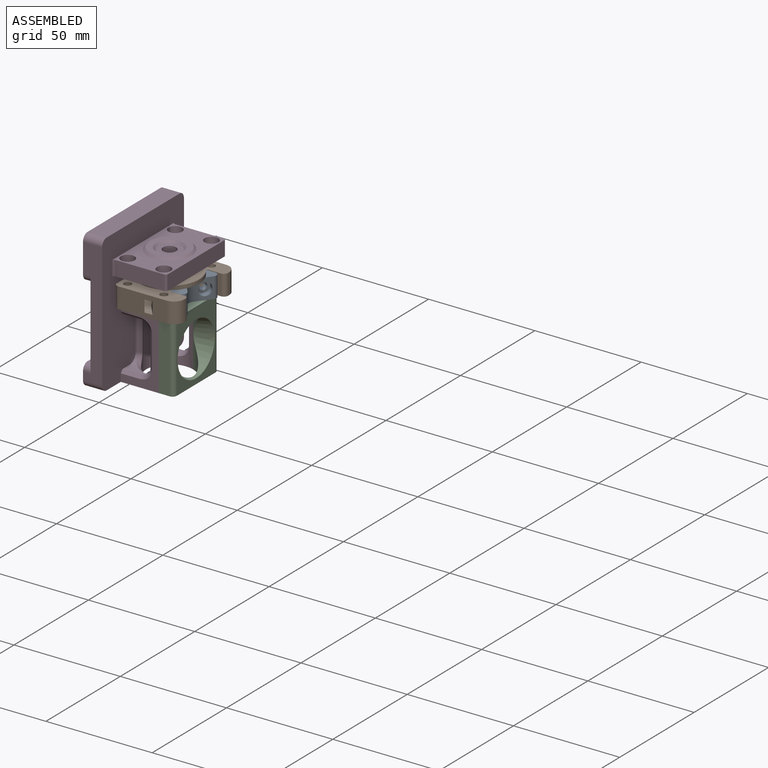
[diagram: assembled view]
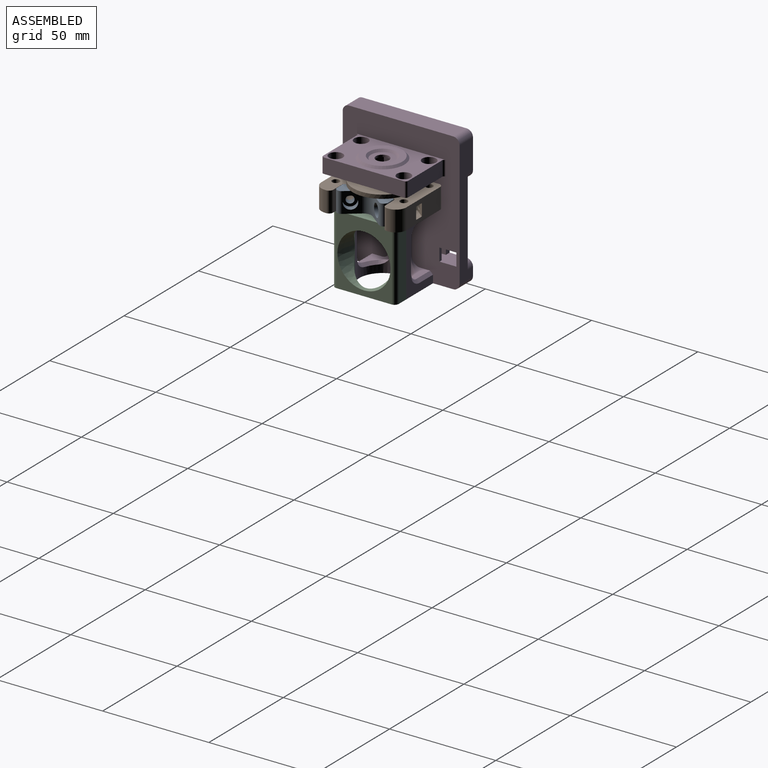
[diagram: assembled view, second angle]
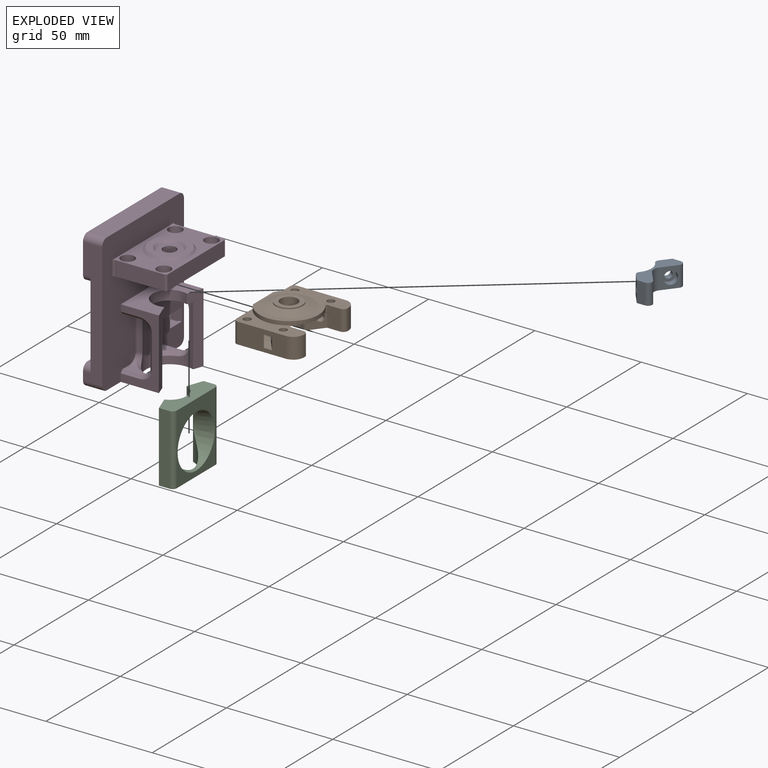
[diagram: exploded view]
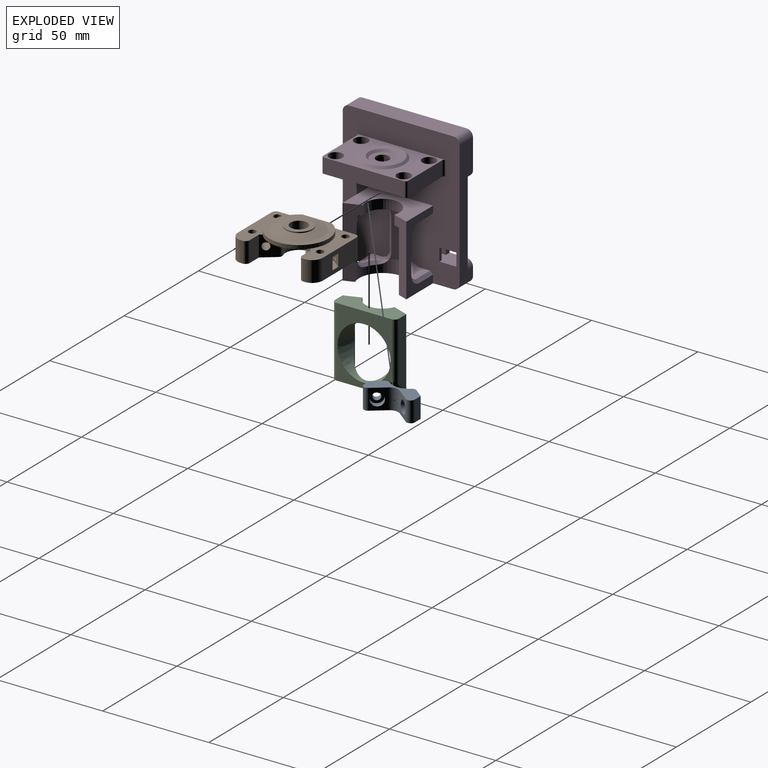
[diagram: exploded view, second angle]
ASSEMBLY  parts=4 mates=3
PART A: 24 faces, bbox 11x24x9.7 mm
  f0: cylinder r=1.75mm len=4.79mm, axis (0.78,0.62,0), area 36.3mm2, adj f7,f10
  f1: plane 24x9.73mm, normal (0,0,1), area 128mm2, adj f3,f6,f7,f8,f9,f12,f14,f16
  f2: plane 24x11mm, normal (0,0,-1), area 153.4mm2, adj f5,f6,f7,f8,f9,f13,f14,f16
  f3: cylinder r=8mm len=10.32mm, axis (0,0,-1), area 44.9mm2, adj f1,f4,f12,f21
  f4: plane 15.38x3.63mm, normal (0,0,1), area 25.4mm2, adj f3,f5,f7,f12,f13,f17,f21,f22
  f5: cylinder r=6mm len=7.26mm, axis (0,0,-1), area 44.4mm2, adj f2,f4,f13,f22
  f6: plane 9.7x3.9mm, normal (0,-1,0), area 37.8mm2, adj f1,f2,f7,f14
  f7: plane 9.7x5.92mm, normal (-0.78,-0.62,0), area 55.3mm2, adj f0,f1,f2,f4,f6,f12,f13
  f8: cylinder r=4mm len=9.7mm, axis (0,0,1), area 51.9mm2, adj f1,f2,f9,f18
  f9: plane 9.7x6.28mm, normal (0.78,0.62,0), area 49.4mm2, adj f1,f2,f8,f11,f14
  f10: plane 6x4.71mm, normal (0.78,0.62,0), area 18.7mm2, adj f0,f11
  f11: cylinder r=3mm len=6.57mm, axis (0.78,0.62,0), area 56.5mm2, adj f9,f10
  f12: cylinder r=2mm len=4mm, axis (0,0,-1), area 11mm2, adj f1,f3,f4,f7
  f13: cylinder r=2mm len=5.7mm, axis (0,0,-1), area 15mm2, adj f2,f4,f5,f7
  f14: cylinder r=2mm len=9.7mm, axis (0,0,-1), area 43.4mm2, adj f1,f2,f6,f9
  f15: cylinder r=1.75mm len=4.79mm, axis (0.78,-0.62,0), area 36.3mm2, adj f17,f19
  f16: plane 9.7x3.9mm, normal (0,1,0), area 37.8mm2, adj f1,f2,f17,f23
  f17: plane 9.7x5.92mm, normal (-0.78,0.62,0), area 55.3mm2, adj f1,f2,f4,f15,f16,f21,f22
  f18: plane 9.7x6.28mm, normal (0.78,-0.62,0), area 49.4mm2, adj f1,f2,f8,f20,f23
  f19: plane 6x4.71mm, normal (0.78,-0.62,0), area 18.7mm2, adj f15,f20
  f20: cylinder r=3mm len=6.57mm, axis (0.78,-0.62,0), area 56.5mm2, adj f18,f19
  f21: cylinder r=2mm len=4mm, axis (0,0,-1), area 11mm2, adj f1,f3,f4,f17
  f22: cylinder r=2mm len=5.7mm, axis (0,0,-1), area 15mm2, adj f2,f4,f5,f17
  f23: cylinder r=2mm len=9.7mm, axis (0,0,-1), area 43.4mm2, adj f1,f2,f16,f18
PART B: 82 faces, bbox 29.7x40x13.5 mm
  f0: plane 22.34x22.3mm, normal (0,0,-1), area 285.4mm2, adj f6,f12,f17,f19,f43,f54,f78
  f1: plane 22.7x9.7mm, normal (0,-1,0), area 198.4mm2, adj f2,f5,f11,f35,f36,f37,f40,f46
  f2: plane 40x29.7mm, normal (0,0,-1), area 654.8mm2, adj f1,f8,f9,f10,f11,f18,f19,f22
  f3: cylinder r=1.75mm len=7mm, axis (0,0,1), area 77mm2, adj f5,f28
  f4: cylinder r=1.75mm len=7mm, axis (0,0,1), area 77mm2, adj f5,f21
  f5: plane 29.7x13.13mm, normal (0,0,1), area 200.6mm2, adj f1,f3,f4,f9,f10,f11,f17,f18
  f6: cylinder r=8.3mm len=16.6mm, axis (0,0,-1), area 143.8mm2, adj f0,f7,f43,f78
  f7: plane 16.6x14.29mm, normal (0,0,1), area 64.3mm2, adj f6,f8,f19,f43,f44,f54,f78,f79
  f8: cylinder r=6.3mm len=12.6mm, axis (0,0,-1), area 133.2mm2, adj f2,f7,f44,f79
  f9: plane 36x11.5mm, normal (-1,0,0), area 373.9mm2, adj f2,f5,f16,f17,f46,f50,f81
  f10: plane 9.7x0.7mm, normal (1,0,0), area 6.8mm2, adj f2,f5,f11,f45
  f11: cylinder r=5mm len=9.7mm, axis (0,0,1), area 76.2mm2, adj f1,f2,f5,f10
  f12: cylinder r=4mm len=8mm, axis (0,0,1), area 95.5mm2, adj f0,f13
  f13: plane 12.5x12.5mm, normal (0,0,1), area 72.5mm2, adj f12,f14
  f14: cylinder r=6.25mm len=12.5mm, axis (0,0,1), area 19.6mm2, adj f13,f15
  f15: cone r=11.2mm half-angle=73.1deg, axis (0,0,-1), area 283.5mm2, adj f14,f16
  f16: plane 28x26.2mm, normal (0,0,1), area 205mm2, adj f9,f15,f17
  f17: cylinder r=14mm len=28mm, axis (0,0,1), area 132.5mm2, adj f0,f5,f9,f16,f50
  f18: plane 9.7x6.17mm, normal (0,1,0), area 59.9mm2, adj f2,f5,f19,f45
  f19: plane 9.7x5.86mm, normal (0.78,0.62,0), area 53.9mm2, adj f0,f2,f5,f7,f18,f20,f43,f44
  f20: cylinder r=1.75mm len=7.98mm, axis (0.78,0.62,0), area 81.4mm2, adj f19,f36
  f21: plane 6.58x5.7mm, normal (0,0,-1), area 18.5mm2, adj f4,f22,f23,f24,f25,f26,f27
  f22: plane 2.85x2.7mm, normal (-0.87,0.5,0), area 8.9mm2, adj f2,f21,f23,f27
  f23: plane 3.29x2.7mm, normal (0,1,0), area 8.9mm2, adj f2,f21,f22,f24
  f24: plane 2.85x2.7mm, normal (0.87,0.5,0), area 8.9mm2, adj f2,f21,f23,f25
  f25: plane 2.85x2.7mm, normal (0.87,-0.5,0), area 8.9mm2, adj f2,f21,f24,f26
  f26: plane 3.29x2.7mm, normal (0,-1,0), area 8.9mm2, adj f2,f21,f25,f27
  f27: plane 2.85x2.7mm, normal (-0.87,-0.5,0), area 8.9mm2, adj f2,f21,f22,f26
  f28: plane 6.58x5.7mm, normal (0,0,-1), area 18.5mm2, adj f3,f29,f30,f31,f32,f33,f34
  f29: plane 2.85x2.7mm, normal (-0.87,0.5,0), area 8.9mm2, adj f2,f28,f30,f34
  f30: plane 3.29x2.7mm, normal (0,1,0), area 8.9mm2, adj f2,f28,f29,f31
  f31: plane 2.85x2.7mm, normal (0.87,0.5,0), area 8.9mm2, adj f2,f28,f30,f32
  f32: plane 2.85x2.7mm, normal (0.87,-0.5,0), area 8.9mm2, adj f2,f28,f31,f33
  f33: plane 3.29x2.7mm, normal (0,-1,0), area 8.9mm2, adj f2,f28,f32,f34
  f34: plane 2.85x2.7mm, normal (-0.87,-0.5,0), area 8.9mm2, adj f2,f28,f29,f33
  f35: plane 5.99x5.7mm, normal (0.78,0.62,0), area 29.2mm2, adj f1,f37,f38,f39,f40,f42
  f36: plane 7.85x6.19mm, normal (-0.78,-0.62,0), area 42.7mm2, adj f1,f20,f37,f38,f39,f40
  f37: plane 7.53x6.55mm, normal (0,0,1), area 21.5mm2, adj f1,f35,f36,f38
  f38: plane 3.37x3.15mm, normal (0.54,-0.68,0.5), area 9.9mm2, adj f35,f36,f37,f39
  f39: plane 3.37x3.15mm, normal (0.54,-0.68,-0.5), area 9.9mm2, adj f35,f36,f38,f40
  f40: plane 7.53x6.55mm, normal (0,0,-1), area 21.5mm2, adj f1,f35,f36,f39
  f41: plane 3.5x2.75mm, normal (0.78,0.62,0), area 9.6mm2, adj f42
  f42: cylinder r=1.75mm len=3.5mm, axis (0.78,0.62,0), area 5.5mm2, adj f35,f41
  f43: cylinder r=2mm len=4.3mm, axis (0,0,-1), area 11.6mm2, adj f0,f6,f7,f19
  f44: cylinder r=2mm len=5.4mm, axis (0,0,-1), area 13.9mm2, adj f2,f7,f8,f19
  f45: cylinder r=2mm len=9.7mm, axis (0,0,-1), area 30.5mm2, adj f2,f5,f10,f18
  f46: cylinder r=2mm len=9.7mm, axis (0,0,1), area 30.5mm2, adj f1,f2,f5,f9
  f47: plane 22.7x9.7mm, normal (0,1,0), area 198.4mm2, adj f2,f50,f52,f70,f71,f72,f75,f81
  f48: cylinder r=1.75mm len=7mm, axis (0,0,1), area 77mm2, adj f50,f63
  f49: cylinder r=1.75mm len=7mm, axis (0,0,1), area 77mm2, adj f50,f56
  f50: plane 29.7x13.13mm, normal (0,0,1), area 200.6mm2, adj f9,f17,f47,f48,f49,f51,f52,f53
  f51: plane 9.7x0.7mm, normal (1,0,0), area 6.8mm2, adj f2,f50,f52,f80
  f52: cylinder r=5mm len=9.7mm, axis (0,0,1), area 76.2mm2, adj f2,f47,f50,f51
  f53: plane 9.7x6.17mm, normal (0,-1,0), area 59.9mm2, adj f2,f50,f54,f80
  f54: plane 9.7x5.86mm, normal (0.78,-0.62,0), area 53.9mm2, adj f0,f2,f7,f50,f53,f55,f78,f79
  f55: cylinder r=1.75mm len=7.98mm, axis (0.78,-0.62,0), area 81.4mm2, adj f54,f71
  f56: plane 6.58x5.7mm, normal (0,0,-1), area 18.5mm2, adj f49,f57,f58,f59,f60,f61,f62
  f57: plane 2.85x2.7mm, normal (-0.87,-0.5,0), area 8.9mm2, adj f2,f56,f58,f62
  f58: plane 3.29x2.7mm, normal (0,-1,0), area 8.9mm2, adj f2,f56,f57,f59
  f59: plane 2.85x2.7mm, normal (0.87,-0.5,0), area 8.9mm2, adj f2,f56,f58,f60
  f60: plane 2.85x2.7mm, normal (0.87,0.5,0), area 8.9mm2, adj f2,f56,f59,f61
  f61: plane 3.29x2.7mm, normal (0,1,0), area 8.9mm2, adj f2,f56,f60,f62
  f62: plane 2.85x2.7mm, normal (-0.87,0.5,0), area 8.9mm2, adj f2,f56,f57,f61
  f63: plane 6.58x5.7mm, normal (0,0,-1), area 18.5mm2, adj f48,f64,f65,f66,f67,f68,f69
  f64: plane 2.85x2.7mm, normal (-0.87,-0.5,0), area 8.9mm2, adj f2,f63,f65,f69
  f65: plane 3.29x2.7mm, normal (0,-1,0), area 8.9mm2, adj f2,f63,f64,f66
  f66: plane 2.85x2.7mm, normal (0.87,-0.5,0), area 8.9mm2, adj f2,f63,f65,f67
  f67: plane 2.85x2.7mm, normal (0.87,0.5,0), area 8.9mm2, adj f2,f63,f66,f68
  f68: plane 3.29x2.7mm, normal (0,1,0), area 8.9mm2, adj f2,f63,f67,f69
  f69: plane 2.85x2.7mm, normal (-0.87,0.5,0), area 8.9mm2, adj f2,f63,f64,f68
  f70: plane 5.99x5.7mm, normal (0.78,-0.62,0), area 29.2mm2, adj f47,f72,f73,f74,f75,f77
  f71: plane 7.85x6.19mm, normal (-0.78,0.62,0), area 42.7mm2, adj f47,f55,f72,f73,f74,f75
  f72: plane 7.53x6.55mm, normal (0,0,1), area 21.5mm2, adj f47,f70,f71,f73
  f73: plane 3.37x3.15mm, normal (0.54,0.68,0.5), area 9.9mm2, adj f70,f71,f72,f74
  f74: plane 3.37x3.15mm, normal (0.54,0.68,-0.5), area 9.9mm2, adj f70,f71,f73,f75
  f75: plane 7.53x6.55mm, normal (0,0,-1), area 21.5mm2, adj f47,f70,f71,f74
  f76: plane 3.5x2.75mm, normal (0.78,-0.62,0), area 9.6mm2, adj f77
  f77: cylinder r=1.75mm len=3.5mm, axis (0.78,-0.62,0), area 5.5mm2, adj f70,f76
  f78: cylinder r=2mm len=4.3mm, axis (0,0,-1), area 11.6mm2, adj f0,f6,f7,f54
  f79: cylinder r=2mm len=5.4mm, axis (0,0,-1), area 13.9mm2, adj f2,f7,f8,f54
  f80: cylinder r=2mm len=9.7mm, axis (0,0,-1), area 30.5mm2, adj f2,f50,f51,f53
  f81: cylinder r=2mm len=9.7mm, axis (0,0,1), area 30.5mm2, adj f2,f9,f47,f50
PART C: 13 faces, bbox 9.8x30x33 mm
  f0: cone r=12.5mm half-angle=15deg, axis (1,0,0), area 374.1mm2, adj f1,f8
  f1: plane 33x26mm, normal (1,0,0), area 367.1mm2, adj f0,f2,f6,f7,f10
  f2: cylinder r=2mm len=33mm, axis (0,0,1), area 103.7mm2, adj f1,f5,f6,f7
  f3: plane 20.67x8.26mm, normal (0,0,-1), area 69.6mm2, adj f4,f8,f9,f12
  f4: cylinder r=8mm len=15.04mm, axis (0,0,-1), area 88mm2, adj f3,f7,f9,f12
  f5: plane 33x5.04mm, normal (0,-1,0), area 166.3mm2, adj f2,f6,f7,f9
  f6: plane 30x8.74mm, normal (0,0,-1), area 143.6mm2, adj f1,f2,f5,f8,f9,f10,f11,f12
  f7: plane 30x9.76mm, normal (0,0,1), area 213.2mm2, adj f1,f2,f4,f5,f9,f10,f11,f12
  f8: cylinder r=11mm len=28.5mm, axis (0,0,-1), area 298.2mm2, adj f0,f3,f6,f9,f12
  f9: plane 33x7.48mm, normal (-0.94,-0.34,0), area 177.3mm2, adj f3,f4,f5,f6,f7,f8
  f10: cylinder r=2mm len=33mm, axis (0,0,1), area 103.7mm2, adj f1,f6,f7,f11
  f11: plane 33x5.04mm, normal (0,1,0), area 166.3mm2, adj f6,f7,f10,f12
  f12: plane 33x7.48mm, normal (-0.94,0.34,0), area 177.3mm2, adj f3,f4,f6,f7,f8,f11
PART D: 146 faces, bbox 35.3x56.3x66.3 mm
  f0: plane 65x55mm, normal (1,0,0), area 2695.3mm2, adj f7,f14,f28,f30,f31,f38,f50,f55
  f1: plane 10.93x10.93mm, normal (0,0,1), area 63.6mm2, adj f16,f99
  f2: cylinder r=1.75mm len=4mm, axis (0,0,1), area 44mm2, adj f7,f95
  f3: cylinder r=1.75mm len=4mm, axis (0,0,1), area 44mm2, adj f7,f93
  f4: cylinder r=1.75mm len=4mm, axis (0,0,1), area 44mm2, adj f7,f91
  f5: cylinder r=1.75mm len=4mm, axis (0,0,1), area 44mm2, adj f7,f89
  f6: cylinder r=9mm len=18mm, axis (0,0,-1), area 68.4mm2, adj f18,f22
  f7: plane 42x25mm, normal (0,0,-1), area 647.4mm2, adj f0,f2,f3,f4,f5,f12,f13,f17
  f8: plane 5.89x4.19mm, normal (1,0,0), area 24.7mm2, adj f11,f15,f18,f24
  f9: plane 5.89x4.19mm, normal (-1,0,0), area 24.7mm2, adj f10,f15,f18,f23
  f10: plane 5.1x4.19mm, normal (-0.5,0.87,0), area 24.7mm2, adj f9,f11,f15,f18
  f11: plane 5.1x4.19mm, normal (0.5,0.87,0), area 24.7mm2, adj f8,f10,f15,f18
  f12: plane 23x7mm, normal (0,-1,0), area 161mm2, adj f7,f14,f17,f88
  f13: plane 38x7mm, normal (1,0,0), area 266mm2, adj f7,f14,f17,f26
  f14: plane 42x25mm, normal (0,0,1), area 531.7mm2, adj f0,f12,f13,f17,f25,f26,f87,f88
  f15: plane 11.78x10.2mm, normal (0,0,-1), area 59.9mm2, adj f8,f9,f10,f11,f16,f23,f24
  f16: cylinder r=3.1mm len=6.2mm, axis (0,0,1), area 19.5mm2, adj f1,f15
  f17: cylinder r=1mm len=7mm, axis (0,0,-1), area 11mm2, adj f7,f12,f13,f14
  f18: plane 18x18mm, normal (0,0,-1), area 164.4mm2, adj f6,f8,f9,f10,f11,f23,f24
  f19: cylinder r=10mm len=20mm, axis (0,0,-1), area 31.4mm2, adj f7,f20
  f20: plane 20x20mm, normal (0,0,-1), area 30.6mm2, adj f19,f21
  f21: cylinder r=9.5mm len=19mm, axis (0,0,-1), area 6mm2, adj f20,f22
  f22: plane 19x19mm, normal (0,0,-1), area 29.1mm2, adj f6,f21
  f23: plane 5.1x4.19mm, normal (-0.5,-0.87,0), area 24.7mm2, adj f9,f15,f18,f24
  f24: plane 5.1x4.19mm, normal (0.5,-0.87,0), area 24.7mm2, adj f8,f15,f18,f23
  f25: plane 23x7mm, normal (0,1,0), area 161mm2, adj f7,f14,f26,f87
  f26: cylinder r=1mm len=7mm, axis (0,0,-1), area 11mm2, adj f7,f13,f14,f25
  f27: plane 41x11mm, normal (-1,0,0), area 193.7mm2, adj f28,f39,f40,f41,f42,f43,f44,f46
  f28: plane 59x9mm, normal (0,1,0), area 387.5mm2, adj f0,f27,f29,f58,f59,f60,f61
  f29: plane 65x55mm, normal (-1,0,0), area 2746.8mm2, adj f28,f30,f31,f32,f34,f38,f39,f40
  f30: plane 49x26.96mm, normal (0,0,-1), area 665.6mm2, adj f0,f29,f58,f82,f100,f102,f124,f125
  f31: plane 49x9mm, normal (0,0,1), area 441mm2, adj f0,f29,f59,f83
  f32: cylinder r=1.55mm len=8mm, axis (-1,0,0), area 77.9mm2, adj f29,f33
  f33: plane 3.1x3.1mm, normal (-1,0,0), area 7.5mm2, adj f32
  f34: cylinder r=1.55mm len=8mm, axis (-1,0,0), area 77.9mm2, adj f29,f35
  f35: plane 3.1x3.1mm, normal (-1,0,0), area 7.5mm2, adj f34
  f36: cylinder r=1.75mm len=3.5mm, axis (-1,0,0), area 33mm2, adj f37,f57
  f37: plane 3.5x3.5mm, normal (-1,0,0), area 9.6mm2, adj f36
  f38: plane 50.5x9mm, normal (0,0,1), area 229mm2, adj f0,f29,f39,f50,f51,f52,f53,f54
  f39: plane 35x3.5mm, normal (0,1,0), area 116.5mm2, adj f27,f29,f38,f40,f51,f55
  f40: plane 8x3.5mm, normal (0,0,-1), area 28mm2, adj f27,f29,f39,f60
  f41: plane 12x1.5mm, normal (0,-1,0), area 18mm2, adj f27,f42,f44,f45
  f42: plane 9.4x1.5mm, normal (0,0,1), area 14.1mm2, adj f27,f41,f43,f45
  f43: plane 12x1.5mm, normal (0,1,0), area 18mm2, adj f27,f42,f44,f45
  f44: plane 9.4x1.5mm, normal (0,0,-1), area 14.1mm2, adj f27,f41,f43,f45
  f45: plane 12x9.4mm, normal (-1,0,0), area 112.8mm2, adj f41,f42,f43,f44
  f46: cylinder r=2mm len=5mm, axis (-1,0,0), area 62.8mm2, adj f27,f47
  f47: plane 4x4mm, normal (-1,0,0), area 12.6mm2, adj f46
  f48: cylinder r=2mm len=5mm, axis (-1,0,0), area 62.8mm2, adj f27,f49
  f49: plane 4x4mm, normal (-1,0,0), area 12.6mm2, adj f48
  f50: plane 6.4x5.5mm, normal (0,-1,0), area 34.6mm2, adj f0,f27,f38,f54,f55,f61
  f51: plane 33x6mm, normal (1,0,0), area 198mm2, adj f38,f39,f55,f68
  f52: plane 32x6mm, normal (-1,0,0), area 192mm2, adj f38,f53,f55,f80
  f53: plane 6x2mm, normal (-0.71,0.71,0), area 17mm2, adj f38,f52,f55,f86
  f54: plane 1.5x0.4mm, normal (-1,0,0), area 0.2mm2, adj f38,f50,f61
  f55: plane 52x6.5mm, normal (0,0,-1), area 185mm2, adj f0,f27,f39,f50,f51,f52,f53,f62
  f56: cylinder r=2mm len=5mm, axis (-1,0,0), area 62.8mm2, adj f29,f57
  f57: plane 4x4mm, normal (-1,0,0), area 2.9mm2, adj f36,f56
  f58: cylinder r=3mm len=9mm, axis (-1,0,0), area 42.4mm2, adj f0,f28,f29,f30
  f59: cylinder r=3mm len=9mm, axis (1,0,0), area 42.4mm2, adj f0,f28,f29,f31
  f60: cylinder r=3mm len=3.5mm, axis (1,0,0), area 16.5mm2, adj f27,f28,f29,f40
  f61: cylinder r=3mm len=7.5mm, axis (-1,0,0), area 22.8mm2, adj f27,f28,f29,f38,f50,f54
  f62: plane 41x11mm, normal (-1,0,0), area 193.7mm2, adj f55,f63,f68,f69,f70,f71,f72,f73
  f63: plane 59x9mm, normal (0,-1,0), area 387.5mm2, adj f0,f29,f62,f82,f83,f84,f85
  f64: cylinder r=1.55mm len=8mm, axis (-1,0,0), area 77.9mm2, adj f29,f65
  f65: plane 3.1x3.1mm, normal (-1,0,0), area 7.5mm2, adj f64
  f66: cylinder r=1.55mm len=8mm, axis (-1,0,0), area 77.9mm2, adj f29,f67
  f67: plane 3.1x3.1mm, normal (-1,0,0), area 7.5mm2, adj f66
  f68: plane 35x3.5mm, normal (0,-1,0), area 116.5mm2, adj f29,f38,f51,f55,f62,f69
  f69: plane 8x3.5mm, normal (0,0,-1), area 28mm2, adj f29,f62,f68,f84
  f70: plane 12x1.5mm, normal (0,1,0), area 18mm2, adj f62,f71,f73,f74
  f71: plane 9.4x1.5mm, normal (0,0,1), area 14.1mm2, adj f62,f70,f72,f74
  f72: plane 12x1.5mm, normal (0,-1,0), area 18mm2, adj f62,f71,f73,f74
  f73: plane 9.4x1.5mm, normal (0,0,-1), area 14.1mm2, adj f62,f70,f72,f74
  f74: plane 12x9.4mm, normal (-1,0,0), area 112.8mm2, adj f70,f71,f72,f73
  f75: cylinder r=2mm len=5mm, axis (-1,0,0), area 62.8mm2, adj f62,f76
  f76: plane 4x4mm, normal (-1,0,0), area 12.6mm2, adj f75
  f77: cylinder r=2mm len=5mm, axis (-1,0,0), area 62.8mm2, adj f62,f78
  f78: plane 4x4mm, normal (-1,0,0), area 12.6mm2, adj f77
  f79: plane 6.4x4mm, normal (0,1,0), area 25.6mm2, adj f55,f62,f81,f85
  f80: plane 6x2mm, normal (-0.71,-0.71,0), area 17mm2, adj f38,f52,f55,f81
  f81: plane 8x6.4mm, normal (-1,0,0), area 48.2mm2, adj f38,f55,f79,f80,f85
  f82: cylinder r=3mm len=9mm, axis (-1,0,0), area 42.4mm2, adj f0,f29,f30,f63
  f83: cylinder r=3mm len=9mm, axis (1,0,0), area 42.4mm2, adj f0,f29,f31,f63
  f84: cylinder r=3mm len=3.5mm, axis (1,0,0), area 16.5mm2, adj f29,f62,f63,f69
  f85: cylinder r=3mm len=7.5mm, axis (-1,0,0), area 22.8mm2, adj f29,f38,f62,f63,f79,f81
  f86: plane 6x1.5mm, normal (0,1,0), area 9mm2, adj f0,f38,f53,f55
  f87: cylinder r=1mm len=7mm, axis (0,0,1), area 11mm2, adj f0,f7,f14,f25
  f88: cylinder r=1mm len=7mm, axis (0,0,1), area 11mm2, adj f0,f7,f12,f14
  f89: plane 6.5x6.5mm, normal (0,0,1), area 23.6mm2, adj f5,f90
  f90: cylinder r=3.25mm len=6.5mm, axis (0,0,1), area 61.3mm2, adj f14,f89
  f91: plane 6.5x6.5mm, normal (0,0,1), area 23.6mm2, adj f4,f92
  f92: cylinder r=3.25mm len=6.5mm, axis (0,0,1), area 61.3mm2, adj f14,f91
  f93: plane 6.5x6.5mm, normal (0,0,1), area 23.6mm2, adj f3,f94
  f94: cylinder r=3.25mm len=6.5mm, axis (0,0,1), area 61.3mm2, adj f14,f93
  f95: plane 6.5x6.5mm, normal (0,0,1), area 23.6mm2, adj f2,f96
  f96: cylinder r=3.25mm len=6.5mm, axis (0,0,1), area 61.3mm2, adj f14,f95
  f97: plane 18.67x18.67mm, normal (0,0,1), area 142.6mm2, adj f98,f99
  f98: cone r=9.34mm half-angle=45deg, axis (0,0,-1), area 87.4mm2, adj f14,f97
  f99: cone r=6.46mm half-angle=45deg, axis (0,0,1), area 53mm2, adj f1,f97
  f100: cylinder r=11mm len=28.5mm, axis (0,0,-1), area 506.9mm2, adj f30,f104,f112,f113,f114,f115,f116,f117
  f101: plane 30x17.96mm, normal (0,0,1), area 334mm2, adj f0,f102,f103,f124,f125,f145
  f102: plane 33.02x17.98mm, normal (0,-1,0), area 221.3mm2, adj f0,f30,f101,f119,f120,f121,f122,f123
  f103: cylinder r=8mm len=16mm, axis (0,0,-1), area 138.2mm2, adj f101,f104,f124,f145
  f104: plane 28.56x17.56mm, normal (0,0,-1), area 204.6mm2, adj f0,f100,f103,f108,f109,f112,f118,f123
  f105: plane 15.5x0.68mm, normal (0,-1,0), area 10.5mm2, adj f0,f109,f111,f117
  f106: plane 15.5x1.38mm, normal (-0.94,-0.34,0), area 22.7mm2, adj f108,f110,f113,f121
  f107: plane 8.95x4.63mm, normal (0,0,1), area 32.5mm2, adj f0,f110,f111,f115,f119
  f108: cylinder r=4mm len=5.24mm, axis (-0.34,0.94,0), area 7.8mm2, adj f104,f106,f112,f122
  f109: cylinder r=4mm len=4.02mm, axis (-1,0,0), area 10.3mm2, adj f0,f104,f105,f118
  f110: cylinder r=4mm len=5.24mm, axis (-0.34,0.94,0), area 7.8mm2, adj f106,f107,f114,f120
  f111: cylinder r=4mm len=4.02mm, axis (-1,0,0), area 10.3mm2, adj f0,f105,f107,f116
  f112: bspline ~7.16x5.41mm, area 12.4mm2, adj f100,f104,f108,f113
  f113: plane 15.5x1.82mm, normal (-0.86,0.52,0), area 33mm2, adj f100,f106,f112,f114
  f114: bspline ~5.77x5.37mm, area 16.4mm2, adj f100,f110,f113,f115
  f115: cone r=12.37mm half-angle=45deg, axis (0,0,1), area 9.1mm2, adj f100,f107,f114,f116
  f116: bspline ~5.77x5.37mm, area 17.4mm2, adj f100,f111,f115,f117
  f117: plane 15.5x1.77mm, normal (0.8,-0.59,0), area 34.1mm2, adj f100,f105,f116,f118
  f118: bspline ~6.83x5.9mm, area 13.1mm2, adj f100,f104,f109,f117
  f119: plane 8.95x1.37mm, normal (0,-0.71,0.71), area 17.3mm2, adj f0,f102,f107,f120
  f120: bspline ~5.72x5.37mm, area 13.1mm2, adj f102,f110,f119,f121
  f121: plane 15.5x1.28mm, normal (-0.57,-0.82,0), area 24.3mm2, adj f102,f106,f120,f122
  f122: bspline ~5.72x5.37mm, area 13.1mm2, adj f102,f108,f121,f123
  f123: plane 8.95x1.37mm, normal (0,-0.71,-0.71), area 17.3mm2, adj f0,f102,f104,f122
  f124: plane 33x7.48mm, normal (0.94,0.34,0), area 177.3mm2, adj f30,f100,f101,f102,f103,f104
  f125: plane 33.02x17.98mm, normal (0,1,0), area 221.3mm2, adj f0,f30,f101,f140,f141,f142,f143,f144
  f126: plane 15.5x0.68mm, normal (0,1,0), area 10.5mm2, adj f0,f130,f132,f138
  f127: plane 15.5x1.38mm, normal (-0.94,0.34,0), area 22.7mm2, adj f129,f131,f134,f142
  f128: plane 8.95x4.63mm, normal (0,0,1), area 32.5mm2, adj f0,f131,f132,f136,f140
  f129: cylinder r=4mm len=5.24mm, axis (-0.34,-0.94,0), area 7.7mm2, adj f104,f127,f133,f143
  f130: cylinder r=4mm len=4.02mm, axis (-1,0,0), area 10.3mm2, adj f0,f104,f126,f139
  f131: cylinder r=4mm len=5.24mm, axis (-0.34,-0.94,0), area 7.7mm2, adj f127,f128,f135,f141
  f132: cylinder r=4mm len=4.02mm, axis (-1,0,0), area 10.3mm2, adj f0,f126,f128,f137
  f133: bspline ~7.16x5.41mm, area 12.4mm2, adj f100,f104,f129,f134
  f134: plane 15.5x1.82mm, normal (-0.86,-0.52,0), area 33mm2, adj f100,f127,f133,f135
  f135: bspline ~5.77x5.37mm, area 16.4mm2, adj f100,f131,f134,f136
  f136: cone r=12.37mm half-angle=45deg, axis (0,0,1), area 9.1mm2, adj f100,f128,f135,f137
  f137: bspline ~5.77x5.37mm, area 17.4mm2, adj f100,f132,f136,f138
  f138: plane 15.5x1.77mm, normal (0.8,0.59,0), area 34.1mm2, adj f100,f126,f137,f139
  f139: bspline ~5.77x5.37mm, area 13.1mm2, adj f100,f104,f130,f138
  f140: plane 8.95x1.37mm, normal (0,0.71,0.71), area 17.3mm2, adj f0,f125,f128,f141
  f141: bspline ~5.72x5.37mm, area 13.1mm2, adj f125,f131,f140,f142
  f142: plane 15.5x1.28mm, normal (-0.57,0.82,0), area 24.3mm2, adj f125,f127,f141,f143
  f143: bspline ~5.72x5.37mm, area 13.1mm2, adj f125,f129,f142,f144
  f144: plane 8.95x1.37mm, normal (0,0.71,-0.71), area 17.3mm2, adj f0,f104,f125,f143
  f145: plane 33x7.48mm, normal (0.94,-0.34,0), area 177.3mm2, adj f30,f100,f101,f103,f104,f125
PLACE A t=(-13.73,5.81,-20.75)mm
PLACE B t=(-13.49,5.99,-20.75)mm
PLACE C t=(-13.49,5.99,-20.92)mm
PLACE D t=(-13.49,5.99,-20.92)mm fixed
MATE slider B.f6 <-> D.f6  axis (0,0,1) through (-0.99,5.99,26.05)mm
MATE fastened B.f20 <-> A.f11  axis (0.78,0.62,0) through (6.64,-4.16,17.25)mm
MATE fastened C.f4 <-> D.f6  axis (0,0,-1) through (-0.99,5.99,7.58)mm
